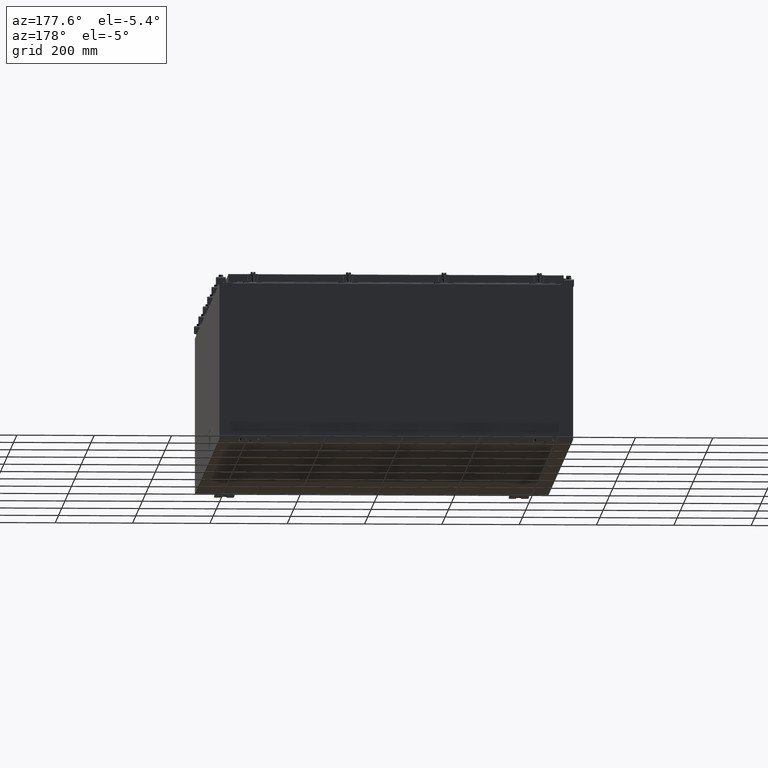
[diagram: clean part render]
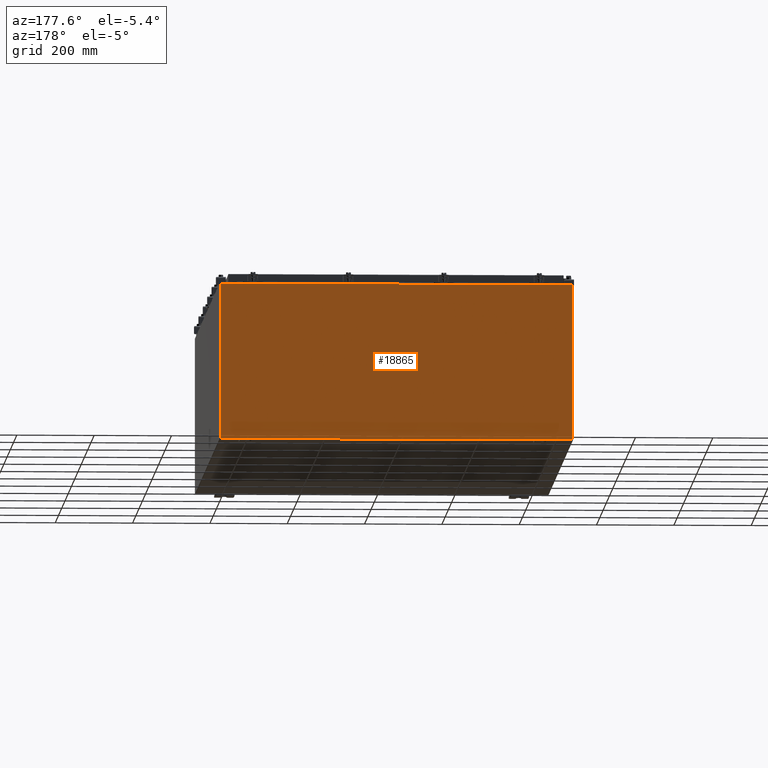
[diagram: same view with one face highlighted and labeled with its STEP entity id]
A machine part, auxiliary view. The second image highlights one B-rep face of the part: STEP entity #18865.
In plain terms, the highlighted planar face has unit normal (0, -1, 0).
Its self-contained STEP definition (entity closure, byte-faithful):
#191 = CARTESIAN_POINT ( 'NONE',  ( 16.67455000000000000, 0.0000000000000000000, 7.874950000000001900 ) ) ;
#973 = DIRECTION ( 'NONE',  ( 1.000000000000000000, 0.0000000000000000000, -6.096072018129154100E-017 ) ) ;
#1399 = ORIENTED_EDGE ( 'NONE', *, *, #7200, .F. ) ;
#1413 = LINE ( 'NONE', #13771, #17751 ) ;
#1696 = ORIENTED_EDGE ( 'NONE', *, *, #25883, .T. ) ;
#2305 = DIRECTION ( 'NONE',  ( 0.0000000000000000000, 0.0000000000000000000, 1.000000000000000000 ) ) ;
#3083 = ORIENTED_EDGE ( 'NONE', *, *, #7918, .F. ) ;
#3345 = VERTEX_POINT ( 'NONE', #27208 ) ;
#3358 = CARTESIAN_POINT ( 'NONE',  ( 16.63720000000000400, 0.0000000000000000000, 7.874950000000001900 ) ) ;
#3380 = ORIENTED_EDGE ( 'NONE', *, *, #3696, .F. ) ;
#3424 = LINE ( 'NONE', #4451, #13443 ) ;
#3454 = LINE ( 'NONE', #19617, #14145 ) ;
#3696 = EDGE_CURVE ( 'NONE', #14431, #25052, #16700, .T. ) ;
#3960 = CARTESIAN_POINT ( 'NONE',  ( 16.65587500000000200, 0.0000000000000000000, 7.874950000000001900 ) ) ;
#4140 = VERTEX_POINT ( 'NONE', #25486 ) ;
#4310 = DIRECTION ( 'NONE',  ( -1.000000000000000000, -0.0000000000000000000, -0.0000000000000000000 ) ) ;
#4451 = CARTESIAN_POINT ( 'NONE',  ( -17.92530000000000000, 0.0000000000000000000, 7.925300000000001800 ) ) ;
#5614 = VERTEX_POINT ( 'NONE', #11128 ) ;
#5656 = ORIENTED_EDGE ( 'NONE', *, *, #5756, .T. ) ;
#5756 = EDGE_CURVE ( 'NONE', #20139, #12367, #20630, .T. ) ;
#5962 = DIRECTION ( 'NONE',  ( -0.0000000000000000000, 1.000000000000000000, -0.0000000000000000000 ) ) ;
#5978 = LINE ( 'NONE', #26735, #11028 ) ;
#6081 = ORIENTED_EDGE ( 'NONE', *, *, #21716, .T. ) ;
#6121 = DIRECTION ( 'NONE',  ( 0.0000000000000000000, 0.0000000000000000000, -1.000000000000000000 ) ) ;
#6130 = CARTESIAN_POINT ( 'NONE',  ( -16.63720000000000400, -0.0000000000000000000, 7.874950000000001900 ) ) ;
#6703 = CARTESIAN_POINT ( 'NONE',  ( 17.92530000000000000, 0.0000000000000000000, 7.925300000000000000 ) ) ;
#7200 = EDGE_CURVE ( 'NONE', #27341, #12367, #8138, .T. ) ;
#7460 = CIRCLE ( 'NONE', #18167, 0.01867499999999949400 ) ;
#7506 = ORIENTED_EDGE ( 'NONE', *, *, #13911, .F. ) ;
#7646 = AXIS2_PLACEMENT_3D ( 'NONE', #26561, #26642, #13861 ) ;
#7774 = EDGE_CURVE ( 'NONE', #3345, #20139, #12468, .T. ) ;
#7918 = EDGE_CURVE ( 'NONE', #20968, #19216, #3454, .T. ) ;
#8138 = LINE ( 'NONE', #21522, #18878 ) ;
#8155 = CARTESIAN_POINT ( 'NONE',  ( -16.67455000000000000, 0.0000000000000000000, 7.874950000000001900 ) ) ;
#8579 = DIRECTION ( 'NONE',  ( 0.0000000000000000000, 0.0000000000000000000, -1.000000000000000000 ) ) ;
#9283 = ORIENTED_EDGE ( 'NONE', *, *, #9768, .T. ) ;
#9768 = EDGE_CURVE ( 'NONE', #14431, #5614, #1413, .T. ) ;
#10023 = CARTESIAN_POINT ( 'NONE',  ( -16.63720000000000400, -2.356218894535426900E-015, 7.912300000000008100 ) ) ;
#10633 = DIRECTION ( 'NONE',  ( -0.0000000000000000000, -0.0000000000000000000, 1.000000000000000000 ) ) ;
#10957 = LINE ( 'NONE', #14985, #20340 ) ;
#11007 = VECTOR ( 'NONE', #13390, 39.37007874015748100 ) ;
#11028 = VECTOR ( 'NONE', #16121, 39.37007874015748100 ) ;
#11091 = VECTOR ( 'NONE', #8579, 39.37007874015748100 ) ;
#11128 = CARTESIAN_POINT ( 'NONE',  ( 16.63720000000000400, 0.0000000000000000000, 7.912300000000001900 ) ) ;
#11573 = CARTESIAN_POINT ( 'NONE',  ( -17.92530000000000000, 0.0000000000000000000, 7.925300000000001800 ) ) ;
#11809 = VECTOR ( 'NONE', #10633, 39.37007874015748100 ) ;
#11903 = FACE_OUTER_BOUND ( 'NONE', #12440, .T. ) ;
#12357 = AXIS2_PLACEMENT_3D ( 'NONE', #18805, #5962, #20955 ) ;
#12367 = VERTEX_POINT ( 'NONE', #16442 ) ;
#12440 = EDGE_LOOP ( 'NONE', ( #1399, #23248, #3380, #9283, #27038, #7506, #3083, #6081, #25845, #1696, #24767, #5656 ) ) ;
#12468 = LINE ( 'NONE', #17000, #11809 ) ;
#13390 = DIRECTION ( 'NONE',  ( 0.0000000000000000000, 0.0000000000000000000, -1.000000000000000000 ) ) ;
#13443 = VECTOR ( 'NONE', #23689, 39.37007874015748100 ) ;
#13771 = CARTESIAN_POINT ( 'NONE',  ( -16.63720000000000400, -2.356218894535426900E-015, 7.912300000000008100 ) ) ;
#13861 = DIRECTION ( 'NONE',  ( 0.0000000000000000000, -0.0000000000000000000, -1.000000000000000000 ) ) ;
#13911 = EDGE_CURVE ( 'NONE', #19216, #17839, #7460, .T. ) ;
#14145 = VECTOR ( 'NONE', #21743, 39.37007874015748100 ) ;
#14431 = VERTEX_POINT ( 'NONE', #10023 ) ;
#14928 = VECTOR ( 'NONE', #973, 39.37007874015748100 ) ;
#14985 = CARTESIAN_POINT ( 'NONE',  ( -17.92530000000000000, 0.0000000000000000000, -7.925299999999997300 ) ) ;
#15498 = EDGE_CURVE ( 'NONE', #23077, #4140, #22439, .T. ) ;
#16121 = DIRECTION ( 'NONE',  ( 0.0000000000000000000, 0.0000000000000000000, 1.000000000000000000 ) ) ;
#16442 = CARTESIAN_POINT ( 'NONE',  ( -16.67455000000000000, 0.0000000000000000000, 7.925300000000001800 ) ) ;
#16627 = EDGE_CURVE ( 'NONE', #17839, #5614, #5978, .T. ) ;
#16700 = LINE ( 'NONE', #24055, #11007 ) ;
#17000 = CARTESIAN_POINT ( 'NONE',  ( -17.92530000000000000, 0.0000000000000000000, 7.925300000000001800 ) ) ;
#17751 = VECTOR ( 'NONE', #26557, 39.37007874015748100 ) ;
#17839 = VERTEX_POINT ( 'NONE', #3358 ) ;
#18167 = AXIS2_PLACEMENT_3D ( 'NONE', #3960, #18955, #6121 ) ;
#18805 = CARTESIAN_POINT ( 'NONE',  ( -16.65587500000000200, 0.0000000000000000000, 7.874950000000001900 ) ) ;
#18865 = ADVANCED_FACE ( 'NONE', ( #11903 ), #24525, .F. ) ;
#18878 = VECTOR ( 'NONE', #2305, 39.37007874015748100 ) ;
#18955 = DIRECTION ( 'NONE',  ( -0.0000000000000000000, 1.000000000000000000, -0.0000000000000000000 ) ) ;
#19216 = VERTEX_POINT ( 'NONE', #191 ) ;
#19617 = CARTESIAN_POINT ( 'NONE',  ( 16.67454999999931800, -0.0000000000000000000, -1.447541957108381700E-012 ) ) ;
#20139 = VERTEX_POINT ( 'NONE', #22220 ) ;
#20340 = VECTOR ( 'NONE', #4310, 39.37007874015748100 ) ;
#20630 = LINE ( 'NONE', #11573, #14928 ) ;
#20955 = DIRECTION ( 'NONE',  ( 0.0000000000000000000, 0.0000000000000000000, -1.000000000000000000 ) ) ;
#20968 = VERTEX_POINT ( 'NONE', #21226 ) ;
#21226 = CARTESIAN_POINT ( 'NONE',  ( 16.67455000000000700, 0.0000000000000000000, 7.925300000000000000 ) ) ;
#21522 = CARTESIAN_POINT ( 'NONE',  ( -16.67455000000000000, -0.0000000000000000000, 0.0000000000000000000 ) ) ;
#21716 = EDGE_CURVE ( 'NONE', #20968, #23077, #3424, .T. ) ;
#21743 = DIRECTION ( 'NONE',  ( -8.681145560800387200E-014, 0.0000000000000000000, -1.000000000000000000 ) ) ;
#22220 = CARTESIAN_POINT ( 'NONE',  ( -17.92530000000000000, 0.0000000000000000000, 7.925300000000001800 ) ) ;
#22439 = LINE ( 'NONE', #25658, #11091 ) ;
#23077 = VERTEX_POINT ( 'NONE', #6703 ) ;
#23248 = ORIENTED_EDGE ( 'NONE', *, *, #24255, .F. ) ;
#23689 = DIRECTION ( 'NONE',  ( 1.000000000000000000, 0.0000000000000000000, -6.096072018129154100E-017 ) ) ;
#24055 = CARTESIAN_POINT ( 'NONE',  ( -16.63720000000000400, -0.0000000000000000000, 0.0000000000000000000 ) ) ;
#24255 = EDGE_CURVE ( 'NONE', #25052, #27341, #24734, .T. ) ;
#24525 = PLANE ( 'NONE',  #7646 ) ;
#24734 = CIRCLE ( 'NONE', #12357, 0.01867499999999949400 ) ;
#24767 = ORIENTED_EDGE ( 'NONE', *, *, #7774, .T. ) ;
#25052 = VERTEX_POINT ( 'NONE', #6130 ) ;
#25486 = CARTESIAN_POINT ( 'NONE',  ( 17.92530000000000000, 0.0000000000000000000, -7.925299999999997300 ) ) ;
#25658 = CARTESIAN_POINT ( 'NONE',  ( 17.92530000000000000, 0.0000000000000000000, 7.925300000000000000 ) ) ;
#25845 = ORIENTED_EDGE ( 'NONE', *, *, #15498, .T. ) ;
#25883 = EDGE_CURVE ( 'NONE', #4140, #3345, #10957, .T. ) ;
#26557 = DIRECTION ( 'NONE',  ( 1.000000000000000000, 0.0000000000000000000, 0.0000000000000000000 ) ) ;
#26561 = CARTESIAN_POINT ( 'NONE',  ( 0.0000000000000000000, 0.0000000000000000000, 0.0000000000000000000 ) ) ;
#26642 = DIRECTION ( 'NONE',  ( 0.0000000000000000000, -1.000000000000000000, 0.0000000000000000000 ) ) ;
#26735 = CARTESIAN_POINT ( 'NONE',  ( 16.63720000000000400, 0.0000000000000000000, 0.0000000000000000000 ) ) ;
#27038 = ORIENTED_EDGE ( 'NONE', *, *, #16627, .F. ) ;
#27208 = CARTESIAN_POINT ( 'NONE',  ( -17.92530000000000000, 0.0000000000000000000, -7.925299999999997300 ) ) ;
#27341 = VERTEX_POINT ( 'NONE', #8155 ) ;